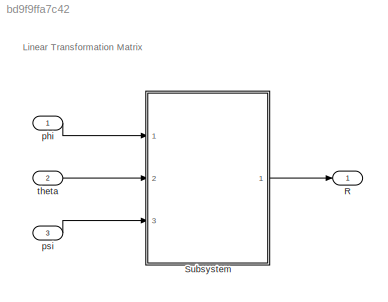
MODEL slx_bd9f9ffa7c42
KIND model
CONFIG AbsTol = auto
CONFIG EnableMultiTasking = off
CONFIG FixedStep = auto
CONFIG MaxStep = auto
CONFIG MinStep = auto
CONFIG RelTol = 1e-3
CONFIG SampleTimeConstraint = Unconstrained
CONFIG Solver = VariableStepAuto
CONFIG SolverName = VariableStepAuto
CONFIG StartTime = 0.0
CONFIG StopTime = 10.0
BLOCK [Outport] R
  IconDisplay = Port number
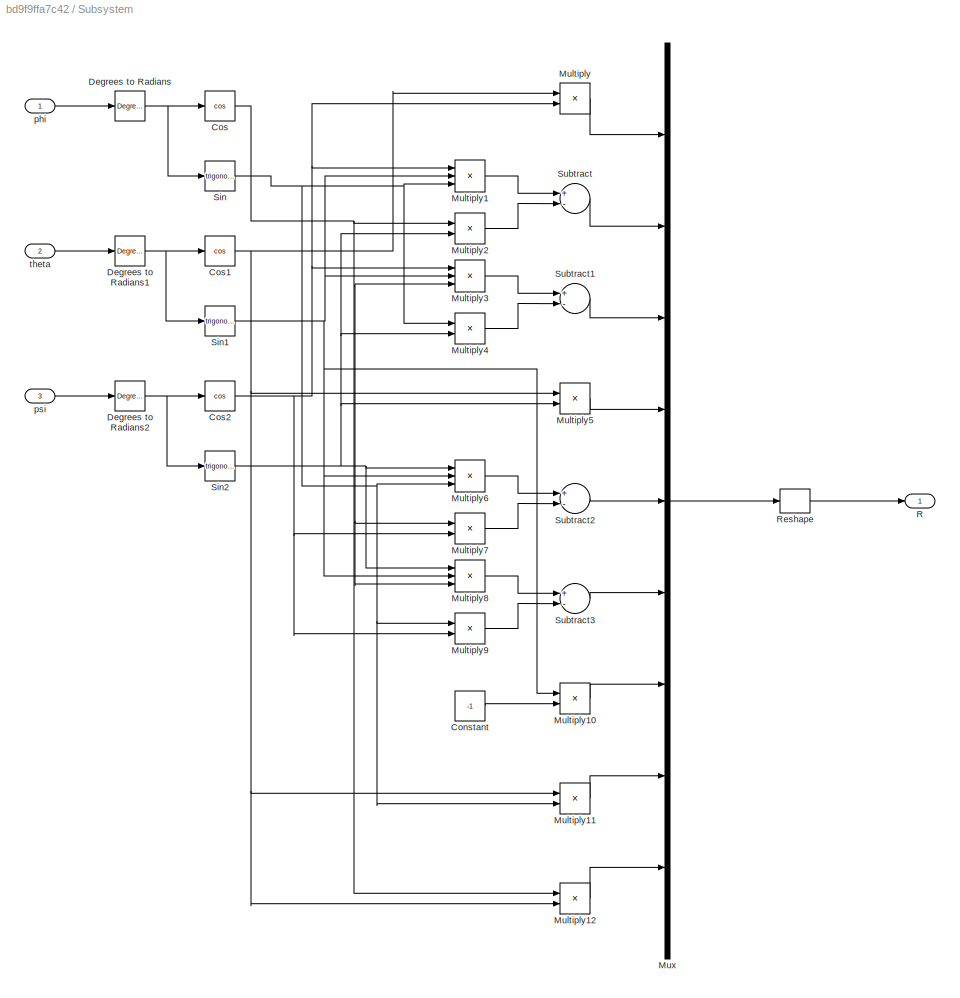
BLOCK [SubSystem] Subsystem
  Ports = [3, 1]
  RequestExecContextInheritance = off
BLOCK [Constant] Subsystem/Constant
  Value = -1
BLOCK [Trigonometry] Subsystem/Cos
  Operator = cos
  Ports = [1, 1]
BLOCK [Trigonometry] Subsystem/Cos1
  Operator = cos
  Ports = [1, 1]
BLOCK [Trigonometry] Subsystem/Cos2
  Operator = cos
  Ports = [1, 1]
BLOCK [Reference] Subsystem/Degrees to Radians  REF=simulink_extras/Transformations/Degrees to
Radians
  Ports = [1, 1]
  SourceBlock = simulink_extras/Transformations/Degrees to\nRadians
  SourceProductBaseCode = SL
  SourceProductName = Simulink
  SourceType = DegreesToRadians
BLOCK [Reference] Subsystem/Degrees to Radians1  REF=simulink_extras/Transformations/Degrees to
Radians
  Ports = [1, 1]
  SourceBlock = simulink_extras/Transformations/Degrees to\nRadians
  SourceProductBaseCode = SL
  SourceProductName = Simulink
  SourceType = DegreesToRadians
BLOCK [Reference] Subsystem/Degrees to Radians2  REF=simulink_extras/Transformations/Degrees to
Radians
  Ports = [1, 1]
  SourceBlock = simulink_extras/Transformations/Degrees to\nRadians
  SourceProductBaseCode = SL
  SourceProductName = Simulink
  SourceType = DegreesToRadians
BLOCK [Product] Subsystem/Multiply
  InputSameDT = off
  OutDataTypeStr = Inherit: Inherit via internal rule
  Ports = [2, 1]
  RndMeth = Floor
  SaturateOnIntegerOverflow = off
BLOCK [Product] Subsystem/Multiply1
  InputSameDT = off
  Inputs = 3
  OutDataTypeStr = Inherit: Inherit via internal rule
  Ports = [3, 1]
  RndMeth = Floor
  SaturateOnIntegerOverflow = off
BLOCK [Product] Subsystem/Multiply10
  InputSameDT = off
  OutDataTypeStr = Inherit: Inherit via internal rule
  Ports = [2, 1]
  RndMeth = Floor
  SaturateOnIntegerOverflow = off
BLOCK [Product] Subsystem/Multiply11
  InputSameDT = off
  OutDataTypeStr = Inherit: Inherit via internal rule
  Ports = [2, 1]
  RndMeth = Floor
  SaturateOnIntegerOverflow = off
BLOCK [Product] Subsystem/Multiply12
  InputSameDT = off
  OutDataTypeStr = Inherit: Inherit via internal rule
  Ports = [2, 1]
  RndMeth = Floor
  SaturateOnIntegerOverflow = off
BLOCK [Product] Subsystem/Multiply2
  InputSameDT = off
  OutDataTypeStr = Inherit: Inherit via internal rule
  Ports = [2, 1]
  RndMeth = Floor
  SaturateOnIntegerOverflow = off
BLOCK [Product] Subsystem/Multiply3
  InputSameDT = off
  Inputs = 3
  OutDataTypeStr = Inherit: Inherit via internal rule
  Ports = [3, 1]
  RndMeth = Floor
  SaturateOnIntegerOverflow = off
BLOCK [Product] Subsystem/Multiply4
  InputSameDT = off
  OutDataTypeStr = Inherit: Inherit via internal rule
  Ports = [2, 1]
  RndMeth = Floor
  SaturateOnIntegerOverflow = off
BLOCK [Product] Subsystem/Multiply5
  InputSameDT = off
  OutDataTypeStr = Inherit: Inherit via internal rule
  Ports = [2, 1]
  RndMeth = Floor
  SaturateOnIntegerOverflow = off
BLOCK [Product] Subsystem/Multiply6
  InputSameDT = off
  Inputs = 3
  OutDataTypeStr = Inherit: Inherit via internal rule
  Ports = [3, 1]
  RndMeth = Floor
  SaturateOnIntegerOverflow = off
BLOCK [Product] Subsystem/Multiply7
  InputSameDT = off
  OutDataTypeStr = Inherit: Inherit via internal rule
  Ports = [2, 1]
  RndMeth = Floor
  SaturateOnIntegerOverflow = off
BLOCK [Product] Subsystem/Multiply8
  InputSameDT = off
  Inputs = 3
  OutDataTypeStr = Inherit: Inherit via internal rule
  Ports = [3, 1]
  RndMeth = Floor
  SaturateOnIntegerOverflow = off
BLOCK [Product] Subsystem/Multiply9
  InputSameDT = off
  OutDataTypeStr = Inherit: Inherit via internal rule
  Ports = [2, 1]
  RndMeth = Floor
  SaturateOnIntegerOverflow = off
BLOCK [Mux] Subsystem/Mux
  DisplayOption = bar
  Inputs = 9
  Ports = [9, 1]
BLOCK [Outport] Subsystem/R
  IconDisplay = Port number
BLOCK [Reshape] Subsystem/Reshape
  OutputDimensionality = Customize
  OutputDimensions = [3,3]
  Ports = [1, 1]
BLOCK [Trigonometry] Subsystem/Sin
  Ports = [1, 1]
BLOCK [Trigonometry] Subsystem/Sin1
  Ports = [1, 1]
BLOCK [Trigonometry] Subsystem/Sin2
  Ports = [1, 1]
BLOCK [Sum] Subsystem/Subtract
  InputSameDT = off
  Inputs = +-
  OutDataTypeStr = Inherit: Inherit via internal rule
  Ports = [2, 1]
  SaturateOnIntegerOverflow = off
BLOCK [Sum] Subsystem/Subtract1
  InputSameDT = off
  Inputs = +-
  OutDataTypeStr = Inherit: Inherit via internal rule
  Ports = [2, 1]
  SaturateOnIntegerOverflow = off
BLOCK [Sum] Subsystem/Subtract2
  InputSameDT = off
  Inputs = +-
  OutDataTypeStr = Inherit: Inherit via internal rule
  Ports = [2, 1]
  SaturateOnIntegerOverflow = off
BLOCK [Sum] Subsystem/Subtract3
  InputSameDT = off
  Inputs = +-
  OutDataTypeStr = Inherit: Inherit via internal rule
  Ports = [2, 1]
  SaturateOnIntegerOverflow = off
BLOCK [Inport] Subsystem/phi
  IconDisplay = Port number
BLOCK [Inport] Subsystem/psi
  IconDisplay = Port number
  Port = 3
BLOCK [Inport] Subsystem/theta
  IconDisplay = Port number
  Port = 2
BLOCK [Inport] phi
  IconDisplay = Port number
BLOCK [Inport] psi
  IconDisplay = Port number
  Port = 3
BLOCK [Inport] theta
  IconDisplay = Port number
  Port = 2
ANNOTATION (root): Linear Transformation Matrix
LINE Subsystem/Constant:1 -> Subsystem/Multiply10:2
NET Subsystem/Cos1:1 -> Subsystem/Multiply11:1, Subsystem/Multiply12:2, Subsystem/Multiply5:1, Subsystem/Multiply:1
NET Subsystem/Cos2:1 -> Subsystem/Multiply1:1, Subsystem/Multiply3:1, Subsystem/Multiply7:2, Subsystem/Multiply9:2, Subsystem/Multiply:2
NET Subsystem/Cos:1 -> Subsystem/Multiply12:1, Subsystem/Multiply2:1, Subsystem/Multiply3:3, Subsystem/Multiply7:1, Subsystem/Multiply8:3
NET Subsystem/Degrees to Radians1:1 -> Subsystem/Cos1:1, Subsystem/Sin1:1
NET Subsystem/Degrees to Radians2:1 -> Subsystem/Cos2:1, Subsystem/Sin2:1
NET Subsystem/Degrees to Radians:1 -> Subsystem/Cos:1, Subsystem/Sin:1
LINE Subsystem/Multiply10:1 -> Subsystem/Mux:7
LINE Subsystem/Multiply11:1 -> Subsystem/Mux:8
LINE Subsystem/Multiply12:1 -> Subsystem/Mux:9
LINE Subsystem/Multiply1:1 -> Subsystem/Subtract:1
LINE Subsystem/Multiply2:1 -> Subsystem/Subtract:2
LINE Subsystem/Multiply3:1 -> Subsystem/Subtract1:1
LINE Subsystem/Multiply4:1 -> Subsystem/Subtract1:2
LINE Subsystem/Multiply5:1 -> Subsystem/Mux:4
LINE Subsystem/Multiply6:1 -> Subsystem/Subtract2:1
LINE Subsystem/Multiply7:1 -> Subsystem/Subtract2:2
LINE Subsystem/Multiply8:1 -> Subsystem/Subtract3:1
LINE Subsystem/Multiply9:1 -> Subsystem/Subtract3:2
LINE Subsystem/Multiply:1 -> Subsystem/Mux:1
LINE Subsystem/Mux:1 -> Subsystem/Reshape:1
LINE Subsystem/Reshape:1 -> Subsystem/R:1
NET Subsystem/Sin1:1 -> Subsystem/Multiply10:1, Subsystem/Multiply1:2, Subsystem/Multiply3:2, Subsystem/Multiply6:2, Subsystem/Multiply8:2
NET Subsystem/Sin2:1 -> Subsystem/Multiply2:2, Subsystem/Multiply4:2, Subsystem/Multiply5:2, Subsystem/Multiply6:1, Subsystem/Multiply8:1
NET Subsystem/Sin:1 -> Subsystem/Multiply11:2, Subsystem/Multiply1:3, Subsystem/Multiply4:1, Subsystem/Multiply6:3, Subsystem/Multiply9:1
LINE Subsystem/Subtract1:1 -> Subsystem/Mux:3
LINE Subsystem/Subtract2:1 -> Subsystem/Mux:5
LINE Subsystem/Subtract3:1 -> Subsystem/Mux:6
LINE Subsystem/Subtract:1 -> Subsystem/Mux:2
LINE Subsystem/phi:1 -> Subsystem/Degrees to Radians:1
LINE Subsystem/psi:1 -> Subsystem/Degrees to Radians2:1
LINE Subsystem/theta:1 -> Subsystem/Degrees to Radians1:1
LINE Subsystem:1 -> R:1
LINE phi:1 -> Subsystem:1
LINE psi:1 -> Subsystem:3
LINE theta:1 -> Subsystem:2
note: NET lines group one-source signal fan-out (src -> all destinations, sorted); 1:1 wires keep LINE
